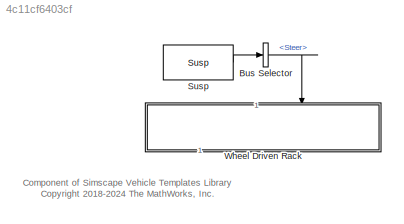
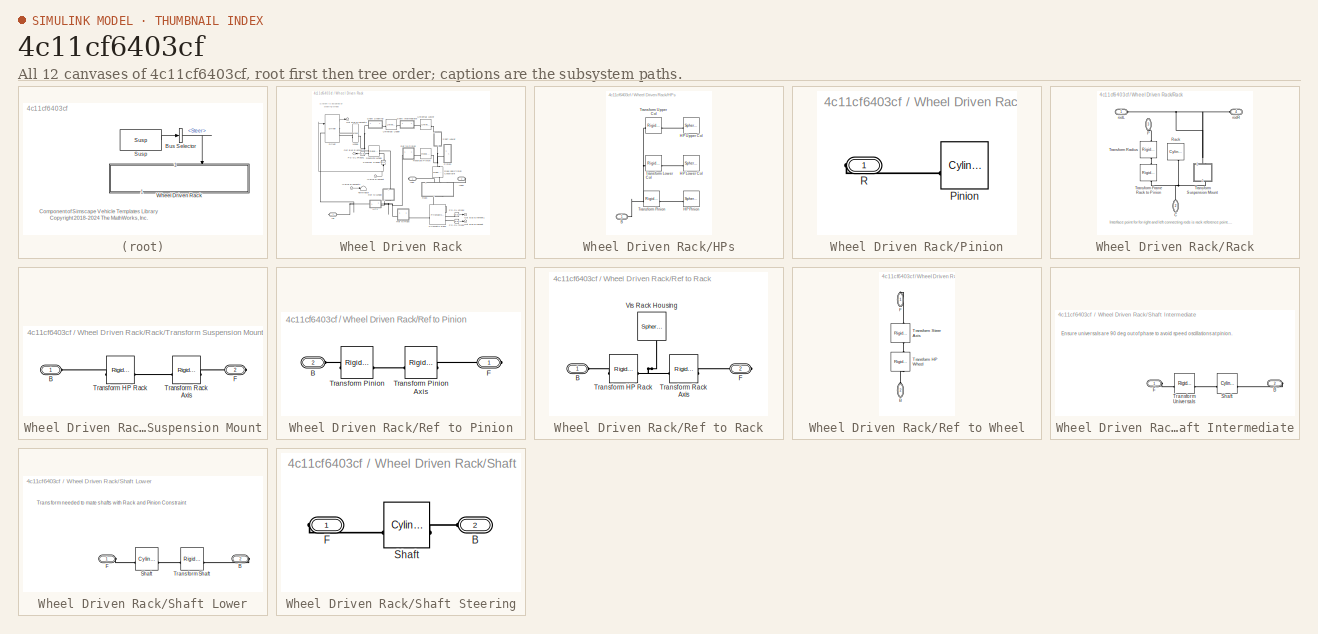
[diagram: thumbnail index - all 12 canvases of the model, root first then tree order]
MODEL slx_4c11cf6403cf
KIND library
CONFIG AbsTol = auto
CONFIG EnableMultiTasking = off
CONFIG FixedStep = auto
CONFIG MaxStep = auto
CONFIG MinStep = auto
CONFIG RelTol = 1e-3
CONFIG SampleTimeConstraint = Unconstrained
CONFIG SolverName = VariableStepAuto
CONFIG StartTime = 0.0
CONFIG StopTime = 10.0
BLOCK [BusSelector] Bus Selector
  OutputSignals = Steer
BLOCK [Reference] Susp  REF=Vehicle_Inputs/Control Bus/Susp
  SourceBlock = Vehicle_Inputs/Control Bus/Susp
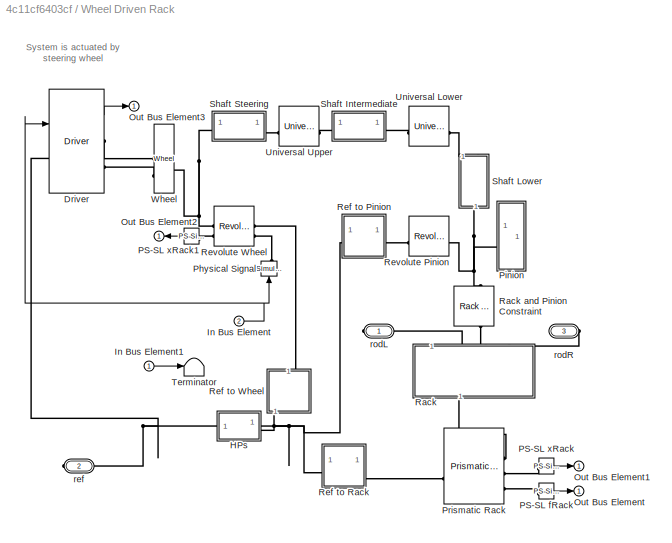
BLOCK [SubSystem] Wheel Driven Rack
  NameLocation = left
  Tag = PublishSubsystem
  VariantControl = Rack
BLOCK [Reference] Wheel Driven Rack/Driver  REF=Driver_Systems/Driver
  AttributesFormatString = %<LabelModeActiveChoice>
  SourceBlock = Driver_Systems/Driver
BLOCK [SubSystem] Wheel Driven Rack/HPs
BLOCK [PMIOPort] Wheel Driven Rack/HPs/B
  Side = Left
BLOCK [Reference] Wheel Driven Rack/HPs/HP Lower Col  REF=sm_lib/Body Elements/Spherical Solid
  SourceBlock = sm_lib/Body Elements/Spherical Solid
  SourceType = Spherical Solid
BLOCK [Reference] Wheel Driven Rack/HPs/HP Pinion  REF=sm_lib/Body Elements/Spherical Solid
  SourceBlock = sm_lib/Body Elements/Spherical Solid
  SourceType = Spherical Solid
BLOCK [Reference] Wheel Driven Rack/HPs/HP Upper Col  REF=sm_lib/Body Elements/Spherical Solid
  SourceBlock = sm_lib/Body Elements/Spherical Solid
  SourceType = Spherical Solid
BLOCK [Reference] Wheel Driven Rack/HPs/Transform Lower Col  REF=sm_lib/Frames and
Transforms/Rigid
Transform
  SourceBlock = sm_lib/Frames and\nTransforms/Rigid\nTransform
  SourceType = Rigid\nTransform
BLOCK [Reference] Wheel Driven Rack/HPs/Transform Pinion  REF=sm_lib/Frames and
Transforms/Rigid
Transform
  SourceBlock = sm_lib/Frames and\nTransforms/Rigid\nTransform
  SourceType = Rigid\nTransform
BLOCK [Reference] Wheel Driven Rack/HPs/Transform Upper Col  REF=sm_lib/Frames and
Transforms/Rigid
Transform
  SourceBlock = sm_lib/Frames and\nTransforms/Rigid\nTransform
  SourceType = Rigid\nTransform
BLOCK [Inport] Wheel Driven Rack/In Bus Element
  Port = 2
BLOCK [Inport] Wheel Driven Rack/In Bus Element1
BLOCK [Outport] Wheel Driven Rack/Out Bus Element
  VectorParamsAs1DForOutWhenUnconnected = off
BLOCK [Outport] Wheel Driven Rack/Out Bus Element1
  VectorParamsAs1DForOutWhenUnconnected = off
BLOCK [Outport] Wheel Driven Rack/Out Bus Element2
  VectorParamsAs1DForOutWhenUnconnected = off
BLOCK [Outport] Wheel Driven Rack/Out Bus Element3
  VectorParamsAs1DForOutWhenUnconnected = off
BLOCK [Reference] Wheel Driven Rack/PS-SL fRack  REF=nesl_utility/PS-Simulink
Converter
  SourceBlock = nesl_utility/PS-Simulink\nConverter
  SourceType = PS-Simulink\nConverter
BLOCK [Reference] Wheel Driven Rack/PS-SL xRack  REF=nesl_utility/PS-Simulink
Converter
  SourceBlock = nesl_utility/PS-Simulink\nConverter
  SourceType = PS-Simulink\nConverter
BLOCK [Reference] Wheel Driven Rack/PS-SL xRack1  REF=nesl_utility/PS-Simulink
Converter
  SourceBlock = nesl_utility/PS-Simulink\nConverter
  SourceType = PS-Simulink\nConverter
BLOCK [Reference] Wheel Driven Rack/Physical Signal  REF=nesl_utility/Simulink-PS
Converter
  AttributesFormatString = Filter Time Constant\n%<InputFilterTimeConstant> sec
  NameLocation = left
  SourceBlock = nesl_utility/Simulink-PS\nConverter
  SourceType = Simulink-PS\nConverter
BLOCK [SubSystem] Wheel Driven Rack/Pinion
BLOCK [Reference] Wheel Driven Rack/Pinion/Pinion  REF=sm_lib/Body Elements/Cylindrical Solid
  SourceBlock = sm_lib/Body Elements/Cylindrical Solid
  SourceType = Cylindrical Solid
BLOCK [PMIOPort] Wheel Driven Rack/Pinion/R
  Side = Right
BLOCK [Reference] Wheel Driven Rack/Prismatic Rack  REF=sm_lib/Joints/Prismatic
Joint
  SourceBlock = sm_lib/Joints/Prismatic\nJoint
  SourceType = Prismatic\nJoint
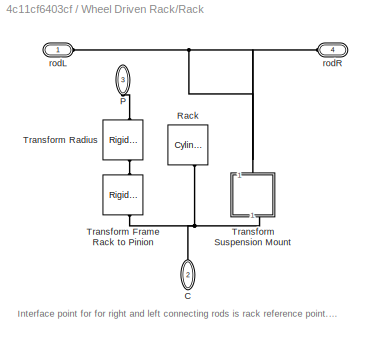
BLOCK [SubSystem] Wheel Driven Rack/Rack
  NameLocation = left
BLOCK [Reference] Wheel Driven Rack/Rack and Pinion Constraint  REF=sm_lib/Gears and
Couplings/Gears/Rack and Pinion
Constraint
  NameLocation = right
  SourceBlock = sm_lib/Gears and\nCouplings/Gears/Rack and Pinion\nConstraint
  SourceType = Rack and Pinion\nConstraint
BLOCK [PMIOPort] Wheel Driven Rack/Rack/C
  NameLocation = left
  Port = 2
  Side = Right
BLOCK [PMIOPort] Wheel Driven Rack/Rack/P
  NameLocation = left
  Port = 3
  Side = Left
BLOCK [Reference] Wheel Driven Rack/Rack/Rack  REF=sm_lib/Body Elements/Cylindrical Solid
  NameLocation = right
  SourceBlock = sm_lib/Body Elements/Cylindrical Solid
  SourceType = Cylindrical Solid
BLOCK [Reference] Wheel Driven Rack/Rack/Transform Frame Rack to Pinion   REF=sm_lib/Frames and
Transforms/Rigid
Transform
  NameLocation = left
  SourceBlock = sm_lib/Frames and\nTransforms/Rigid\nTransform
  SourceType = Rigid\nTransform
BLOCK [Reference] Wheel Driven Rack/Rack/Transform Radius  REF=sm_lib/Frames and
Transforms/Rigid
Transform
  NameLocation = left
  SourceBlock = sm_lib/Frames and\nTransforms/Rigid\nTransform
  SourceType = Rigid\nTransform
BLOCK [SubSystem] Wheel Driven Rack/Rack/Transform Suspension Mount
  NameLocation = right
BLOCK [PMIOPort] Wheel Driven Rack/Rack/Transform Suspension Mount/B
  Side = Left
BLOCK [PMIOPort] Wheel Driven Rack/Rack/Transform Suspension Mount/F
  Port = 2
  Side = Right
BLOCK [Reference] Wheel Driven Rack/Rack/Transform Suspension Mount/Transform HP Rack  REF=sm_lib/Frames and
Transforms/Rigid
Transform
  SourceBlock = sm_lib/Frames and\nTransforms/Rigid\nTransform
  SourceType = Rigid\nTransform
BLOCK [Reference] Wheel Driven Rack/Rack/Transform Suspension Mount/Transform Rack Axis  REF=sm_lib/Frames and
Transforms/Rigid
Transform
  SourceBlock = sm_lib/Frames and\nTransforms/Rigid\nTransform
  SourceType = Rigid\nTransform
BLOCK [PMIOPort] Wheel Driven Rack/Rack/rodL
  Side = Left
BLOCK [PMIOPort] Wheel Driven Rack/Rack/rodR
  Port = 4
  Side = Left
BLOCK [SubSystem] Wheel Driven Rack/Ref to Pinion
BLOCK [PMIOPort] Wheel Driven Rack/Ref to Pinion/B
  Port = 2
  Side = Left
BLOCK [PMIOPort] Wheel Driven Rack/Ref to Pinion/F
  Side = Right
BLOCK [Reference] Wheel Driven Rack/Ref to Pinion/Transform Pinion  REF=sm_lib/Frames and
Transforms/Rigid
Transform
  SourceBlock = sm_lib/Frames and\nTransforms/Rigid\nTransform
  SourceType = Rigid\nTransform
BLOCK [Reference] Wheel Driven Rack/Ref to Pinion/Transform Pinion Axis  REF=sm_lib/Frames and
Transforms/Rigid
Transform
  SourceBlock = sm_lib/Frames and\nTransforms/Rigid\nTransform
  SourceType = Rigid\nTransform
BLOCK [SubSystem] Wheel Driven Rack/Ref to Rack
BLOCK [PMIOPort] Wheel Driven Rack/Ref to Rack/B
  Side = Left
BLOCK [PMIOPort] Wheel Driven Rack/Ref to Rack/F
  Port = 2
  Side = Right
BLOCK [Reference] Wheel Driven Rack/Ref to Rack/Transform HP Rack  REF=sm_lib/Frames and
Transforms/Rigid
Transform
  SourceBlock = sm_lib/Frames and\nTransforms/Rigid\nTransform
  SourceType = Rigid\nTransform
BLOCK [Reference] Wheel Driven Rack/Ref to Rack/Transform Rack Axis  REF=sm_lib/Frames and
Transforms/Rigid
Transform
  SourceBlock = sm_lib/Frames and\nTransforms/Rigid\nTransform
  SourceType = Rigid\nTransform
BLOCK [Reference] Wheel Driven Rack/Ref to Rack/Vis Rack Housing  REF=sm_lib/Body Elements/Spherical Solid
  NameLocation = left
  SourceBlock = sm_lib/Body Elements/Spherical Solid
  SourceType = Spherical Solid
BLOCK [SubSystem] Wheel Driven Rack/Ref to Wheel
  NameLocation = left
BLOCK [PMIOPort] Wheel Driven Rack/Ref to Wheel/B
  NameLocation = right
  Port = 2
  Side = Left
BLOCK [PMIOPort] Wheel Driven Rack/Ref to Wheel/F
  NameLocation = left
  Side = Right
BLOCK [Reference] Wheel Driven Rack/Ref to Wheel/Transform HP Wheel  REF=sm_lib/Frames and
Transforms/Rigid
Transform
  NameLocation = left
  SourceBlock = sm_lib/Frames and\nTransforms/Rigid\nTransform
  SourceType = Rigid\nTransform
BLOCK [Reference] Wheel Driven Rack/Ref to Wheel/Transform Steer Axis  REF=sm_lib/Frames and
Transforms/Rigid
Transform
  NameLocation = left
  SourceBlock = sm_lib/Frames and\nTransforms/Rigid\nTransform
  SourceType = Rigid\nTransform
BLOCK [Reference] Wheel Driven Rack/Revolute Pinion  REF=sm_lib/Joints/Revolute Joint
  SourceBlock = sm_lib/Joints/Revolute Joint
  SourceType = Revolute Joint
BLOCK [Reference] Wheel Driven Rack/Revolute Wheel  REF=sm_lib/Joints/Revolute Joint
  NameLocation = top
  SourceBlock = sm_lib/Joints/Revolute Joint
  SourceType = Revolute Joint
BLOCK [SubSystem] Wheel Driven Rack/Shaft Intermediate
BLOCK [PMIOPort] Wheel Driven Rack/Shaft Intermediate/B
  Port = 2
  Side = Right
BLOCK [PMIOPort] Wheel Driven Rack/Shaft Intermediate/F
  Side = Left
BLOCK [Reference] Wheel Driven Rack/Shaft Intermediate/Shaft  REF=sm_lib/Body Elements/Cylindrical Solid
  SourceBlock = sm_lib/Body Elements/Cylindrical Solid
  SourceType = Cylindrical Solid
BLOCK [Reference] Wheel Driven Rack/Shaft Intermediate/Transform Universals  REF=sm_lib/Frames and
Transforms/Rigid
Transform
  SourceBlock = sm_lib/Frames and\nTransforms/Rigid\nTransform
  SourceType = Rigid\nTransform
BLOCK [SubSystem] Wheel Driven Rack/Shaft Lower
  NameLocation = left
BLOCK [PMIOPort] Wheel Driven Rack/Shaft Lower/B
  Port = 2
  Side = Right
BLOCK [PMIOPort] Wheel Driven Rack/Shaft Lower/F
  Side = Left
BLOCK [Reference] Wheel Driven Rack/Shaft Lower/Shaft  REF=sm_lib/Body Elements/Cylindrical Solid
  SourceBlock = sm_lib/Body Elements/Cylindrical Solid
  SourceType = Cylindrical Solid
BLOCK [Reference] Wheel Driven Rack/Shaft Lower/Transform Shaft  REF=sm_lib/Frames and
Transforms/Rigid
Transform
  SourceBlock = sm_lib/Frames and\nTransforms/Rigid\nTransform
  SourceType = Rigid\nTransform
BLOCK [SubSystem] Wheel Driven Rack/Shaft Steering
BLOCK [PMIOPort] Wheel Driven Rack/Shaft Steering/B
  Port = 2
  Side = Left
BLOCK [PMIOPort] Wheel Driven Rack/Shaft Steering/F
  Side = Right
BLOCK [Reference] Wheel Driven Rack/Shaft Steering/Shaft  REF=sm_lib/Body Elements/Cylindrical Solid
  SourceBlock = sm_lib/Body Elements/Cylindrical Solid
  SourceType = Cylindrical Solid
BLOCK [Terminator] Wheel Driven Rack/Terminator
BLOCK [Reference] Wheel Driven Rack/Universal Lower  REF=sm_lib/Joints/Universal
Joint
  NameLocation = top
  SourceBlock = sm_lib/Joints/Universal\nJoint
  SourceType = Universal\nJoint
BLOCK [Reference] Wheel Driven Rack/Universal Upper  REF=sm_lib/Joints/Universal
Joint
  NameLocation = top
  SourceBlock = sm_lib/Joints/Universal\nJoint
  SourceType = Universal\nJoint
BLOCK [Reference] Wheel Driven Rack/Wheel  REF=SteeringWheel/Wheel
  SourceBlock = SteeringWheel/Wheel
BLOCK [PMIOPort] Wheel Driven Rack/ref
  Port = 2
  Side = Right
BLOCK [PMIOPort] Wheel Driven Rack/rodL
  Side = Right
BLOCK [PMIOPort] Wheel Driven Rack/rodR
  Port = 3
  Side = Right
ANNOTATION (root): Component of Simscape Vehicle Templates Library <copyright redacted>
ANNOTATION Wheel Driven Rack: System is actuated by steering wheel
ANNOTATION Wheel Driven Rack/Rack: Interface point for for right and left connecting rods is rack reference point. This permits the rack subsystem to mate with the connecting rods without knowing where they are, as both systems (rack and linkages) know where the front axle reference point is.
ANNOTATION Wheel Driven Rack/Shaft Intermediate: Ensure universals are 90 deg out of phase to avoid speed oscillations at pinion.
ANNOTATION Wheel Driven Rack/Shaft Lower: Transform needed to mate shafts with Rack and Pinion Constraint
LINE Bus Selector:1 -> Wheel Driven Rack:2
LINE Susp:1 -> Bus Selector:1
